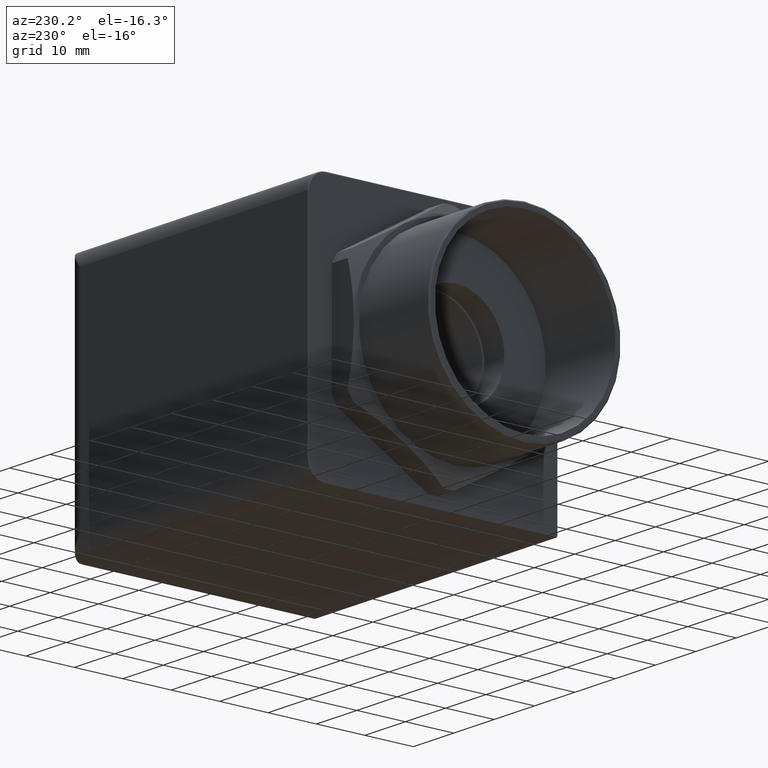
[diagram: clean part render]
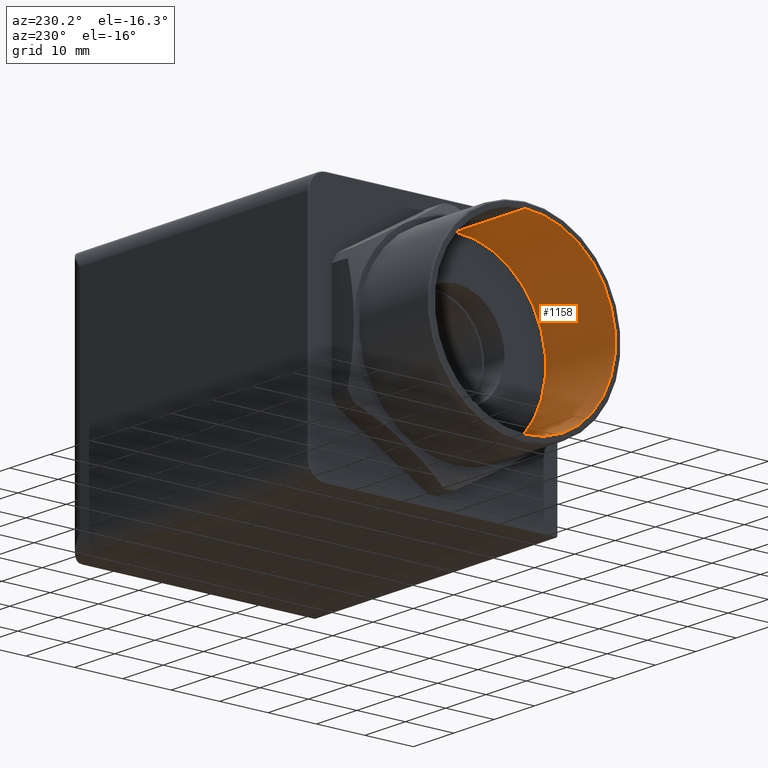
[diagram: same view with one face highlighted and labeled with its STEP entity id]
A machine part, auxiliary view. The second image highlights one B-rep face of the part: STEP entity #1158.
In plain terms, the highlighted cylindrical surface (partial cylindrical patch) has radius 18.669 mm, axis along (-1, 0, 0).
Its self-contained STEP definition (entity closure, byte-faithful):
#412 = DIRECTION ( 'NONE',  ( -1.000000000000000000, 0.0000000000000000000, 0.0000000000000000000 ) ) ;
#413 = VECTOR ( 'NONE', #412, 39.37007874015748100 ) ;
#414 = CARTESIAN_POINT ( 'NONE',  ( -0.5911096051061856000, 9.001153973733045900E-017, -0.7349999999999999900 ) ) ;
#415 = LINE ( 'NONE', #414, #413 ) ;
#417 = DIRECTION ( 'NONE',  ( 0.0000000000000000000, 0.0000000000000000000, 1.000000000000000000 ) ) ;
#418 = DIRECTION ( 'NONE',  ( -1.000000000000000000, 0.0000000000000000000, 0.0000000000000000000 ) ) ;
#419 = CARTESIAN_POINT ( 'NONE',  ( -1.326999999999999700, 0.0000000000000000000, 0.0000000000000000000 ) ) ;
#420 = AXIS2_PLACEMENT_3D ( 'NONE', #419, #418, #417 ) ;
#421 = CIRCLE ( 'NONE', #420, 0.7349999999999999900 ) ;
#422 = CARTESIAN_POINT ( 'NONE',  ( -1.326999999999999700, 9.001153973733045900E-017, -0.7349999999999999900 ) ) ;
#423 = DIRECTION ( 'NONE',  ( -1.000000000000000000, 0.0000000000000000000, 0.0000000000000000000 ) ) ;
#424 = VECTOR ( 'NONE', #423, 39.37007874015748100 ) ;
#425 = CARTESIAN_POINT ( 'NONE',  ( -0.5911096051061856000, 0.0000000000000000000, 0.7349999999999999900 ) ) ;
#426 = LINE ( 'NONE', #425, #424 ) ;
#433 = CARTESIAN_POINT ( 'NONE',  ( -1.326999999999999700, 0.0000000000000000000, 0.7349999999999999900 ) ) ;
#740 = ORIENTED_EDGE ( 'NONE', *, *, #3488, .T. ) ;
#1136 = VERTEX_POINT ( 'NONE', #2182 ) ;
#1139 = VERTEX_POINT ( 'NONE', #2181 ) ;
#1155 = ORIENTED_EDGE ( 'NONE', *, *, #1156, .F. ) ;
#1156 = EDGE_CURVE ( 'NONE', #1136, #1139, #2175, .T. ) ;
#1157 = EDGE_LOOP ( 'NONE', ( #1155, #740, #3483, #3480 ) ) ;
#1158 = ADVANCED_FACE ( 'NONE', ( #2170 ), #2169, .F. ) ;
#2165 = DIRECTION ( 'NONE',  ( 0.0000000000000000000, 0.0000000000000000000, 1.000000000000000000 ) ) ;
#2166 = DIRECTION ( 'NONE',  ( -1.000000000000000000, 0.0000000000000000000, 0.0000000000000000000 ) ) ;
#2167 = CARTESIAN_POINT ( 'NONE',  ( -0.5911096051061856000, 0.0000000000000000000, 0.0000000000000000000 ) ) ;
#2168 = AXIS2_PLACEMENT_3D ( 'NONE', #2167, #2166, #2165 ) ;
#2169 = CYLINDRICAL_SURFACE ( 'NONE', #2168, 0.7349999999999999900 ) ;
#2170 = FACE_OUTER_BOUND ( 'NONE', #1157, .T. ) ;
#2171 = DIRECTION ( 'NONE',  ( 0.0000000000000000000, 0.0000000000000000000, 1.000000000000000000 ) ) ;
#2172 = DIRECTION ( 'NONE',  ( -1.000000000000000000, 0.0000000000000000000, 0.0000000000000000000 ) ) ;
#2173 = CARTESIAN_POINT ( 'NONE',  ( -0.6449999999999998000, 0.0000000000000000000, 0.0000000000000000000 ) ) ;
#2174 = AXIS2_PLACEMENT_3D ( 'NONE', #2173, #2172, #2171 ) ;
#2175 = CIRCLE ( 'NONE', #2174, 0.7349999999999999900 ) ;
#2181 = CARTESIAN_POINT ( 'NONE',  ( -0.6449999999999998000, 0.0000000000000000000, 0.7349999999999999900 ) ) ;
#2182 = CARTESIAN_POINT ( 'NONE',  ( -0.6449999999999998000, 9.001153973733045900E-017, -0.7349999999999999900 ) ) ;
#3479 = VERTEX_POINT ( 'NONE', #433 ) ;
#3480 = ORIENTED_EDGE ( 'NONE', *, *, #3482, .F. ) ;
#3482 = EDGE_CURVE ( 'NONE', #1139, #3479, #426, .T. ) ;
#3483 = ORIENTED_EDGE ( 'NONE', *, *, #3485, .T. ) ;
#3484 = VERTEX_POINT ( 'NONE', #422 ) ;
#3485 = EDGE_CURVE ( 'NONE', #3484, #3479, #421, .T. ) ;
#3488 = EDGE_CURVE ( 'NONE', #1136, #3484, #415, .T. ) ;